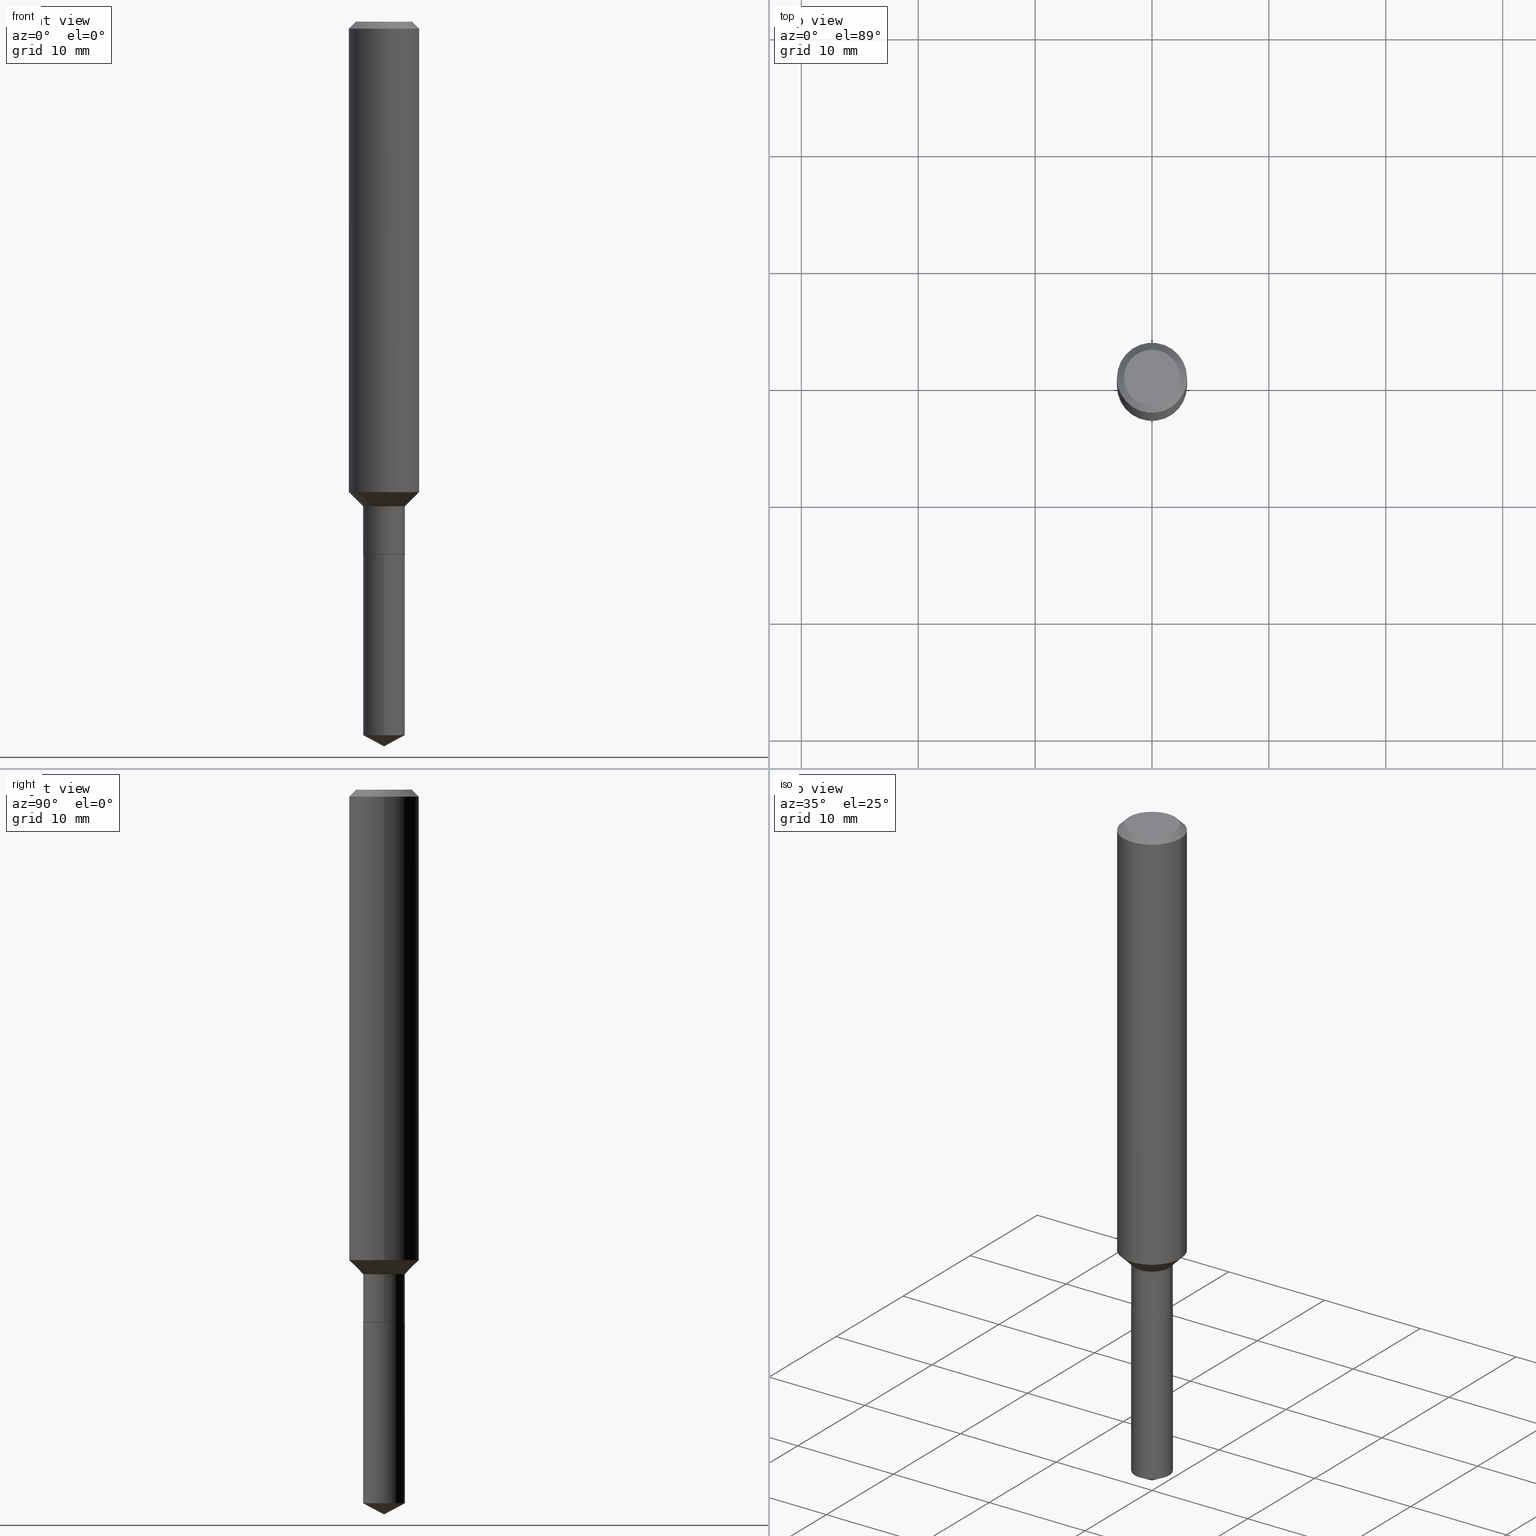
[diagram: canonical four-view strip — front | top / right | iso, engineering-drawing reading convention]
A machine part, canonical four-view strip (front | top / right | iso — engineering-drawing reading convention). The complete STEP part file that produces these views, byte-faithful:
ISO-10303-21;
HEADER;
FILE_DESCRIPTION (( 'STEP AP203' ),
    '1' );
FILE_NAME ('54702.STEP',
    '2024-04-24T15:22:13',
    ( '' ),
    ( '' ),
    'SwSTEP 2.0',
    'SolidWorks 2023',
    '' );
FILE_SCHEMA (( 'CONFIG_CONTROL_DESIGN' ));
ENDSEC;

DATA;
#1 = DIRECTION ( 'NONE',  ( -2.445468806185136877E-29, 3.491481338843145188E-15, 1.000000000000000000 ) ) ;
#2 = EDGE_CURVE ( 'NONE', #123, #404, #293, .T. ) ;
#3 = DIRECTION ( 'NONE',  ( -2.445468806185136597E-29, 3.491481338843145583E-15, 1.000000000000000000 ) ) ;
#4 = CIRCLE ( 'NONE', #474, 0.07029999999999998750 ) ;
#5 = ORGANIZATION ( 'UNSPECIFIED', 'UNSPECIFIED', '' ) ;
#6 = COORDINATED_UNIVERSAL_TIME_OFFSET ( 5, 0, .BEHIND. ) ;
#7 = DIRECTION ( 'NONE',  ( -2.445468806185136877E-29, 3.491481338843145188E-15, 1.000000000000000000 ) ) ;
#8 = ORIENTED_EDGE ( 'NONE', *, *, #89, .T. ) ;
#9 = CARTESIAN_POINT ( 'NONE',  ( 0.07029999999999998750, -6.190396413768896991E-15, -1.632400000000000295 ) ) ;
#10 = MANIFOLD_SOLID_BREP ( 'Body-Move/Copy2[1]', #482 ) ;
#11 = CC_DESIGN_PERSON_AND_ORGANIZATION_ASSIGNMENT ( #335, #411, ( #248 ) ) ;
#12 = CARTESIAN_POINT ( 'NONE',  ( 0.1181000000000001909, -6.357289221765599043E-15, -1.584600000000000453 ) ) ;
#13 = ORIENTED_EDGE ( 'NONE', *, *, #116, .F. ) ;
#14 = VECTOR ( 'NONE', #178, 39.37007874015748143 ) ;
#15 = VECTOR ( 'NONE', #249, 39.37007874015748143 ) ;
#16 = AXIS2_PLACEMENT_3D ( 'NONE', #329, #102, #171 ) ;
#17 = LINE ( 'NONE', #398, #91 ) ;
#18 = ORIENTED_EDGE ( 'NONE', *, *, #401, .T. ) ;
#19 = DIRECTION ( 'NONE',  ( -2.445468806185136597E-29, 3.491481338843145583E-15, 1.000000000000000000 ) ) ;
#20 = EDGE_CURVE ( 'NONE', #354, #123, #407, .T. ) ;
#21 = EDGE_LOOP ( 'NONE', ( #153, #409, #32, #8 ) ) ;
#22 = CARTESIAN_POINT ( 'NONE',  ( -0.1180999999999999966, -1.968384088444482555E-15, -0.02362000000000014088 ) ) ;
#23 = ORIENTED_EDGE ( 'NONE', *, *, #231, .F. ) ;
#24 = CARTESIAN_POINT ( 'NONE',  ( 0.07030000000000000138, -6.753223205590411040E-15, -1.793600000000000305 ) ) ;
#25 = EDGE_CURVE ( 'NONE', #384, #354, #4, .T. ) ;
#26 = CARTESIAN_POINT ( 'NONE',  ( 3.875089870280967892E-29, -5.532601329530849202E-15, -1.584600000000000453 ) ) ;
#27 = FACE_OUTER_BOUND ( 'NONE', #348, .T. ) ;
#28 =( LENGTH_UNIT ( ) NAMED_UNIT ( * ) SI_UNIT ( $, .METRE. ) );
#29 =( GEOMETRIC_REPRESENTATION_CONTEXT ( 3 ) GLOBAL_UNCERTAINTY_ASSIGNED_CONTEXT ( ( #325 ) ) GLOBAL_UNIT_ASSIGNED_CONTEXT ( ( #367, #448, #208 ) ) REPRESENTATION_CONTEXT ( 'NONE', 'WORKASPACE' ) );
#30 = ORIENTED_EDGE ( 'NONE', *, *, #455, .F. ) ;
#31 = CARTESIAN_POINT ( 'NONE',  ( 4.387415585176754180E-29, -6.264066670018488385E-15, -1.794100000000000028 ) ) ;
#32 = ORIENTED_EDGE ( 'NONE', *, *, #473, .T. ) ;
#33 = EDGE_CURVE ( 'NONE', #250, #201, #358, .T. ) ;
#34 = CARTESIAN_POINT ( 'NONE',  ( 6.011011443872282174E-29, -8.462401395969029001E-15, -2.440900000000000070 ) ) ;
#35 = ORIENTED_EDGE ( 'NONE', *, *, #66, .F. ) ;
#36 = ORIENTED_EDGE ( 'NONE', *, *, #33, .T. ) ;
#37 = AXIS2_PLACEMENT_3D ( 'NONE', #161, #58, #97 ) ;
#38 = APPROVAL_PERSON_ORGANIZATION ( #375, #320, #184 ) ;
#39 = FACE_OUTER_BOUND ( 'NONE', #226, .T. ) ;
#40 = CALENDAR_DATE ( 2024, 24, 4 ) ;
#41 = CARTESIAN_POINT ( 'NONE',  ( 6.011551123276464954E-29, -8.462401395969029001E-15, -2.440900000000000070 ) ) ;
#42 = APPROVAL_ROLE ( '' ) ;
#43 = FACE_OUTER_BOUND ( 'NONE', #470, .T. ) ;
#44 = VERTEX_POINT ( 'NONE', #356 ) ;
#45 = VECTOR ( 'NONE', #65, 39.37007874015748143 ) ;
#46 = APPROVAL_ROLE ( '' ) ;
#47 = PLANE ( 'NONE',  #59 ) ;
#48 = CC_DESIGN_DATE_AND_TIME_ASSIGNMENT ( #267, #302, ( #290 ) ) ;
#49 = EDGE_LOOP ( 'NONE', ( #365, #254, #69, #35 ) ) ;
#50 = LINE ( 'NONE', #9, #168 ) ;
#51 = ORIENTED_EDGE ( 'NONE', *, *, #81, .T. ) ;
#52 = DIRECTION ( 'NONE',  ( -2.445468806185136597E-29, 3.491481338843145583E-15, 1.000000000000000000 ) ) ;
#53 = ORIENTED_EDGE ( 'NONE', *, *, #259, .T. ) ;
#54 = ADVANCED_FACE ( 'NONE', ( #450 ), #339, .T. ) ;
#55 = FACE_OUTER_BOUND ( 'NONE', #49, .T. ) ;
#56 = DIRECTION ( 'NONE',  ( -2.445468806185136597E-29, 3.491481338843145583E-15, 1.000000000000000000 ) ) ;
#57 = DIRECTION ( 'NONE',  ( -2.462620936487476637E-29, 3.466918512011564751E-15, 1.000000000000000000 ) ) ;
#58 = DIRECTION ( 'NONE',  ( -2.445468806185136597E-29, 3.491481338843145583E-15, 1.000000000000000000 ) ) ;
#59 = AXIS2_PLACEMENT_3D ( 'NONE', #77, #305, #344 ) ;
#60 = CARTESIAN_POINT ( 'NONE',  ( 0.1181000000000001077, -8.246878922347488542E-16, 5.758764772215005345E-30 ) ) ;
#61 = CIRCLE ( 'NONE', #457, 0.07029999999999998750 ) ;
#62 = ADVANCED_FACE ( 'NONE', ( #94 ), #242, .T. ) ;
#63 = DIRECTION ( 'NONE',  ( 1.000000000000000000, -6.982962677686266711E-15, 0.000000000000000000 ) ) ;
#64 = ORIENTED_EDGE ( 'NONE', *, *, #387, .T. ) ;
#65 = DIRECTION ( 'NONE',  ( -2.462620936487476637E-29, 3.466918512011564751E-15, 1.000000000000000000 ) ) ;
#66 = EDGE_CURVE ( 'NONE', #107, #326, #50, .T. ) ;
#67 = AXIS2_PLACEMENT_3D ( 'NONE', #230, #385, #298 ) ;
#68 = CIRCLE ( 'NONE', #261, 0.09447999999999998066 ) ;
#69 = ORIENTED_EDGE ( 'NONE', *, *, #396, .F. ) ;
#70 = CARTESIAN_POINT ( 'NONE',  ( 0.07030000000000000138, -4.909022762413445529E-16, 3.427952273384543137E-30 ) ) ;
#71 = ORIENTED_EDGE ( 'NONE', *, *, #25, .F. ) ;
#72 = ORIENTED_EDGE ( 'NONE', *, *, #480, .T. ) ;
#73 = COORDINATED_UNIVERSAL_TIME_OFFSET ( 5, 0, .BEHIND. ) ;
#74 = DIRECTION ( 'NONE',  ( 1.000000000000000000, -6.982962677686266711E-15, 4.876176775795935793E-29 ) ) ;
#75 = CIRCLE ( 'NONE', #373, 0.1181000000000001909 ) ;
#76 = APPLICATION_PROTOCOL_DEFINITION ( 'international standard', 'config_control_design', 1994, #82 ) ;
#77 = CARTESIAN_POINT ( 'NONE',  ( 3.301506705810441154E-46, -4.713676585956823162E-32, -1.350050631380041873E-17 ) ) ;
#78 = CARTESIAN_POINT ( 'NONE',  ( 0.06980000000000000093, -6.751477464920990326E-15, -1.794100000000000028 ) ) ;
#79 = EDGE_LOOP ( 'NONE', ( #488, #490, #121, #311 ) ) ;
#80 = FACE_OUTER_BOUND ( 'NONE', #162, .T. ) ;
#81 = EDGE_CURVE ( 'NONE', #175, #250, #185, .T. ) ;
#82 = APPLICATION_CONTEXT ( 'configuration controlled 3d designs of mechanical parts and assemblies' ) ;
#83 = AXIS2_PLACEMENT_3D ( 'NONE', #318, #477, #328 ) ;
#84 = CIRCLE ( 'NONE', #16, 0.07029999999999998750 ) ;
#85 = DIRECTION ( 'NONE',  ( -2.438088387897960049E-29, 3.491481338843145188E-15, 1.000000000000000000 ) ) ;
#86 = ORIENTED_EDGE ( 'NONE', *, *, #231, .T. ) ;
#87 = CARTESIAN_POINT ( 'NONE',  ( 6.603013411620882309E-46, -9.427353171913646324E-32, -2.700101262760083747E-17 ) ) ;
#88 = ORIENTED_EDGE ( 'NONE', *, *, #240, .F. ) ;
#89 = EDGE_CURVE ( 'NONE', #274, #211, #413, .T. ) ;
#90 = FACE_OUTER_BOUND ( 'NONE', #244, .T. ) ;
#91 = VECTOR ( 'NONE', #160, 39.37007874015748143 ) ;
#92 = CC_DESIGN_APPROVAL ( #333, ( #290 ) ) ;
#93 = FACE_OUTER_BOUND ( 'NONE', #234, .T. ) ;
#94 = FACE_OUTER_BOUND ( 'NONE', #79, .T. ) ;
#95 = CARTESIAN_POINT ( 'NONE',  ( 0.000000000000000000, 0.000000000000000000, 0.000000000000000000 ) ) ;
#96 = ORIENTED_EDGE ( 'NONE', *, *, #163, .F. ) ;
#97 = DIRECTION ( 'NONE',  ( 1.000000000000000000, -6.982962677686271444E-15, 0.000000000000000000 ) ) ;
#98 = CC_DESIGN_PERSON_AND_ORGANIZATION_ASSIGNMENT ( #451, #142, ( #290 ) ) ;
#99 = MECHANICAL_CONTEXT ( 'NONE', #108, 'mechanical' ) ;
#100 = AXIS2_PLACEMENT_3D ( 'NONE', #362, #288, #479 ) ;
#101 = EDGE_CURVE ( 'NONE', #201, #212, #308, .T. ) ;
#102 = DIRECTION ( 'NONE',  ( -2.462620936487476637E-29, 3.466918512011564751E-15, 1.000000000000000000 ) ) ;
#103 = ORIENTED_EDGE ( 'NONE', *, *, #480, .F. ) ;
#104 = CARTESIAN_POINT ( 'NONE',  ( 0.1180999999999999966, -8.926936027602933910E-16, -0.02362000000000014088 ) ) ;
#105 = AXIS2_PLACEMENT_3D ( 'NONE', #334, #281, #434 ) ;
#106 = LOCAL_TIME ( 11, 22, 13.00000000000000000, #381 ) ;
#107 = VERTEX_POINT ( 'NONE', #189 ) ;
#108 = APPLICATION_CONTEXT ( 'configuration controlled 3d designs of mechanical parts and assemblies' ) ;
#109 = ORIENTED_EDGE ( 'NONE', *, *, #259, .F. ) ;
#110 = APPROVAL_STATUS ( 'not_yet_approved' ) ;
#111 = DIRECTION ( 'NONE',  ( 1.000000000000000000, -6.982962677686271444E-15, 0.000000000000000000 ) ) ;
#112 = CARTESIAN_POINT ( 'NONE',  ( 5.949466169921425223E-29, -8.550537731206106707E-15, -2.440900000000000070 ) ) ;
#113 = AXIS2_PLACEMENT_3D ( 'NONE', #95, #132, #475 ) ;
#114 = COORDINATED_UNIVERSAL_TIME_OFFSET ( 5, 0, .BEHIND. ) ;
#115 = CARTESIAN_POINT ( 'NONE',  ( 0.000000000000000000, 0.000000000000000000, 0.000000000000000000 ) ) ;
#116 = EDGE_CURVE ( 'NONE', #107, #212, #423, .T. ) ;
#117 = DIRECTION ( 'NONE',  ( 1.000000000000000000, -6.982962677686265922E-15, 4.876176775795935793E-29 ) ) ;
#118 = ORIENTED_EDGE ( 'NONE', *, *, #473, .F. ) ;
#119 = FACE_OUTER_BOUND ( 'NONE', #392, .T. ) ;
#120 = AXIS2_PLACEMENT_3D ( 'NONE', #376, #85, #117 ) ;
#121 = ORIENTED_EDGE ( 'NONE', *, *, #416, .F. ) ;
#122 = DIRECTION ( 'NONE',  ( 1.000000000000000000, -6.982962677686265133E-15, 0.000000000000000000 ) ) ;
#123 = VERTEX_POINT ( 'NONE', #268 ) ;
#124 = CARTESIAN_POINT ( 'NONE',  ( 4.387415585176754180E-29, -6.264066670018488385E-15, -1.794100000000000028 ) ) ;
#125 = ORIENTED_EDGE ( 'NONE', *, *, #364, .T. ) ;
#126 = FACE_OUTER_BOUND ( 'NONE', #483, .T. ) ;
#127 = ORIENTED_EDGE ( 'NONE', *, *, #200, .T. ) ;
#128 = LOCAL_TIME ( 11, 22, 13.00000000000000000, #6 ) ;
#129 = CARTESIAN_POINT ( 'NONE',  ( -9.097334136977545138E-28, 1.279863852400173612E-13, 36.92917874015748225 ) ) ;
#130 = ORIENTED_EDGE ( 'NONE', *, *, #167, .T. ) ;
#131 = EDGE_CURVE ( 'NONE', #175, #272, #431, .T. ) ;
#132 = DIRECTION ( 'NONE',  ( -2.445468806185136597E-29, 3.491481338843145583E-15, 1.000000000000000000 ) ) ;
#133 = CONICAL_SURFACE ( 'NONE', #433, 74.04434902938366747, 1.082104136236487157 ) ;
#134 = ADVANCED_FACE ( 'NONE', ( #43 ), #463, .T. ) ;
#135 = CARTESIAN_POINT ( 'NONE',  ( 0.000000000000000000, 0.000000000000000000, 0.000000000000000000 ) ) ;
#136 = ORIENTED_EDGE ( 'NONE', *, *, #396, .T. ) ;
#137 = DIRECTION ( 'NONE',  ( -2.462620936487476637E-29, 3.466918512011564751E-15, 1.000000000000000000 ) ) ;
#138 = CARTESIAN_POINT ( 'NONE',  ( 5.888188072765674543E-29, -8.376879016591395070E-15, -2.403520826954198331 ) ) ;
#139 = DIRECTION ( 'NONE',  ( -0.7071067811865460184, 2.468850131082241283E-15, -0.7071067811865490160 ) ) ;
#140 = CC_DESIGN_APPROVAL ( #206, ( #187 ) ) ;
#141 = CARTESIAN_POINT ( 'NONE',  ( 4.386192850773661378E-29, -6.262320929349066882E-15, -1.793600000000000305 ) ) ;
#142 = PERSON_AND_ORGANIZATION_ROLE ( 'creator' ) ;
#143 = ADVANCED_FACE ( 'NONE', ( #461 ), #418, .T. ) ;
#144 = DIRECTION ( 'NONE',  ( -6.165590087286836818E-15, -0.8829475928589266553, 0.4694715627858913609 ) ) ;
#145 = CARTESIAN_POINT ( 'NONE',  ( 0.000000000000000000, 0.000000000000000000, 0.000000000000000000 ) ) ;
#146 = DATE_AND_TIME ( #224, #323 ) ;
#147 = DIRECTION ( 'NONE',  ( -2.462620936487476637E-29, 3.466918512011564751E-15, 1.000000000000000000 ) ) ;
#148 = AXIS2_PLACEMENT_3D ( 'NONE', #357, #156, #438 ) ;
#149 = AXIS2_PLACEMENT_3D ( 'NONE', #199, #275, #243 ) ;
#150 = ADVANCED_FACE ( 'NONE', ( #119 ), #380, .T. ) ;
#151 = APPROVAL_STATUS ( 'not_yet_approved' ) ;
#152 = CARTESIAN_POINT ( 'NONE',  ( 0.06980000000000000093, -6.751477464920990326E-15, -1.794100000000000028 ) ) ;
#153 = ORIENTED_EDGE ( 'NONE', *, *, #401, .F. ) ;
#154 = DIRECTION ( 'NONE',  ( 0.7071067811865493491, -2.468850131082275993E-15, 0.7071067811865457964 ) ) ;
#155 = VERTEX_POINT ( 'NONE', #262 ) ;
#156 = DIRECTION ( 'NONE',  ( -2.445468806185136597E-29, 3.491481338843145583E-15, 1.000000000000000000 ) ) ;
#157 = ORIENTED_EDGE ( 'NONE', *, *, #467, .F. ) ;
#158 = CARTESIAN_POINT ( 'NONE',  ( 3.991983279216617405E-29, -5.699494137527552043E-15, -1.632400000000000295 ) ) ;
#159 = ORIENTED_EDGE ( 'NONE', *, *, #426, .T. ) ;
#160 = DIRECTION ( 'NONE',  ( -0.7071067811866259545, 7.493145998870638150E-15, 0.7071067811864690800 ) ) ;
#161 = CARTESIAN_POINT ( 'NONE',  ( 4.387415585176754180E-29, -6.264066670018488385E-15, -1.794100000000000028 ) ) ;
#162 = EDGE_LOOP ( 'NONE', ( #109, #86, #51, #289 ) ) ;
#163 = EDGE_CURVE ( 'NONE', #445, #384, #220, .T. ) ;
#164 = AXIS2_PLACEMENT_3D ( 'NONE', #378, #301, #180 ) ;
#165 = FACE_OUTER_BOUND ( 'NONE', #472, .T. ) ;
#166 = CARTESIAN_POINT ( 'NONE',  ( -0.09447999999999998066, 7.009847083995354710E-16, -2.700101262760559836E-17 ) ) ;
#167 = EDGE_CURVE ( 'NONE', #44, #274, #425, .T. ) ;
#168 = VECTOR ( 'NONE', #154, 39.37007874015748143 ) ;
#169 = CIRCLE ( 'NONE', #204, 0.1180999999999999966 ) ;
#170 = ORIENTED_EDGE ( 'NONE', *, *, #131, .T. ) ;
#171 = DIRECTION ( 'NONE',  ( -6.982962677686265133E-15, -1.000000000000000000, 3.885985766236506175E-15 ) ) ;
#172 = ORIENTED_EDGE ( 'NONE', *, *, #33, .F. ) ;
#173 = DIMENSIONAL_EXPONENTS ( 1.000000000000000000, 0.000000000000000000, 0.000000000000000000, 0.000000000000000000, 0.000000000000000000, 0.000000000000000000, 0.000000000000000000 ) ;
#174 = CARTESIAN_POINT ( 'NONE',  ( -4.909022762413006725E-16, -0.07030000000000626026, -1.794099999999999806 ) ) ;
#175 = VERTEX_POINT ( 'NONE', #152 ) ;
#176 = ADVANCED_FACE ( 'NONE', ( #39 ), #47, .F. ) ;
#177 = CONICAL_SURFACE ( 'NONE', #366, 0.1180999999999999966, 0.7853981633974461696 ) ;
#178 = DIRECTION ( 'NONE',  ( -2.462620936487476637E-29, 3.466918512011564751E-15, 1.000000000000000000 ) ) ;
#179 = DATE_AND_TIME ( #40, #128 ) ;
#180 = DIRECTION ( 'NONE',  ( 1.000000000000000000, -6.982962677686266711E-15, 0.000000000000000000 ) ) ;
#181 = PERSON_AND_ORGANIZATION_ROLE ( 'creator' ) ;
#182 = CARTESIAN_POINT ( 'NONE',  ( 0.1180999999999999966, -9.071566814582237199E-16, -0.02362000000000014088 ) ) ;
#183 = ADVANCED_FACE ( 'NONE', ( #336 ), #223, .F. ) ;
#184 = APPROVAL_ROLE ( '' ) ;
#185 = LINE ( 'NONE', #78, #399 ) ;
#186 = VECTOR ( 'NONE', #190, 39.37007874015748143 ) ;
#187 = SECURITY_CLASSIFICATION ( '', '', #417 ) ;
#188 = DATE_AND_TIME ( #420, #476 ) ;
#189 = CARTESIAN_POINT ( 'NONE',  ( 0.07029999999999998750, -6.190396413768896991E-15, -1.632400000000000295 ) ) ;
#190 = DIRECTION ( 'NONE',  ( 6.273719981627766865E-15, 0.8829475928589298750, 0.4694715627858853102 ) ) ;
#191 = ORIENTED_EDGE ( 'NONE', *, *, #20, .F. ) ;
#192 = FACE_OUTER_BOUND ( 'NONE', #345, .T. ) ;
#193 = DESIGN_CONTEXT ( 'detailed design', #82, 'design' ) ;
#194 = AXIS2_PLACEMENT_3D ( 'NONE', #115, #3, #74 ) ;
#195 = AXIS2_PLACEMENT_3D ( 'NONE', #429, #236, #388 ) ;
#196 = ORIENTED_EDGE ( 'NONE', *, *, #416, .T. ) ;
#197 = DIRECTION ( 'NONE',  ( -6.982962677686266711E-15, -1.000000000000000000, 3.885985766236506175E-15 ) ) ;
#198 = ORIENTED_EDGE ( 'NONE', *, *, #327, .T. ) ;
#199 = CARTESIAN_POINT ( 'NONE',  ( 4.387415585176754180E-29, -6.264066670018488385E-15, -1.794100000000000028 ) ) ;
#200 = EDGE_CURVE ( 'NONE', #445, #354, #452, .T. ) ;
#201 = VERTEX_POINT ( 'NONE', #347 ) ;
#202 = DIRECTION ( 'NONE',  ( -0.7071067811865493491, 7.493145998870360471E-15, 0.7071067811865457964 ) ) ;
#203 = AXIS2_PLACEMENT_3D ( 'NONE', #145, #454, #415 ) ;
#204 = AXIS2_PLACEMENT_3D ( 'NONE', #233, #52, #487 ) ;
#205 = DIRECTION ( 'NONE',  ( -6.982962677686265922E-15, -1.000000000000000000, 3.541896320645554558E-15 ) ) ;
#206 = APPROVAL ( #151, 'UNSPECIFIED' ) ;
#207 = PERSON_AND_ORGANIZATION_ROLE ( 'design_owner' ) ;
#208 =( NAMED_UNIT ( * ) SI_UNIT ( $, .STERADIAN. ) SOLID_ANGLE_UNIT ( ) );
#209 = DIRECTION ( 'NONE',  ( -6.982962677686265133E-15, -1.000000000000000000, 3.885985766236506175E-15 ) ) ;
#210 = CONICAL_SURFACE ( 'NONE', #414, 0.07029999999999998750, 0.7853981633974508325 ) ;
#211 = VERTEX_POINT ( 'NONE', #182 ) ;
#212 = VERTEX_POINT ( 'NONE', #304 ) ;
#213 = ADVANCED_FACE ( 'NONE', ( #80 ), #465, .T. ) ;
#214 = PERSON_AND_ORGANIZATION ( #361, #5 ) ;
#215 = DIRECTION ( 'NONE',  ( -2.445468806185136597E-29, 3.491481338843145583E-15, 1.000000000000000000 ) ) ;
#216 = AXIS2_PLACEMENT_3D ( 'NONE', #124, #245, #197 ) ;
#217 = PERSON_AND_ORGANIZATION ( #361, #5 ) ;
#218 = CIRCLE ( 'NONE', #351, 0.1181000000000001909 ) ;
#219 = CIRCLE ( 'NONE', #100, 0.09447999999999998066 ) ;
#220 = LINE ( 'NONE', #112, #270 ) ;
#221 = ADVANCED_FACE ( 'NONE', ( #258 ), #395, .T. ) ;
#222 = APPROVAL_DATE_TIME ( #146, #333 ) ;
#223 = PLANE ( 'NONE',  #120 ) ;
#224 = CALENDAR_DATE ( 2024, 24, 4 ) ;
#225 = DIRECTION ( 'NONE',  ( 0.7071067811866259545, -2.468850131083078659E-15, 0.7071067811864690800 ) ) ;
#226 = EDGE_LOOP ( 'NONE', ( #125, #159 ) ) ;
#227 = APPROVAL_DATE_TIME ( #343, #206 ) ;
#228 = CARTESIAN_POINT ( 'NONE',  ( 4.387415585176754180E-29, -6.264066670018488385E-15, -1.794100000000000028 ) ) ;
#229 = ORIENTED_EDGE ( 'NONE', *, *, #360, .T. ) ;
#230 = CARTESIAN_POINT ( 'NONE',  ( 3.991983279216617405E-29, -5.699494137527552043E-15, -1.632400000000000295 ) ) ;
#231 = EDGE_CURVE ( 'NONE', #272, #175, #247, .T. ) ;
#232 = ORIENTED_EDGE ( 'NONE', *, *, #200, .F. ) ;
#233 = CARTESIAN_POINT ( 'NONE',  ( 5.776197320209327532E-31, -8.246878922347559293E-17, -0.02362000000000014088 ) ) ;
#234 = EDGE_LOOP ( 'NONE', ( #196, #276 ) ) ;
#235 = ADVANCED_BREP_SHAPE_REPRESENTATION ( '54702', ( #10, #346, #303 ), #29 ) ;
#236 = DIRECTION ( 'NONE',  ( -2.445468806185136597E-29, 3.491481338843145583E-15, 1.000000000000000000 ) ) ;
#237 = VECTOR ( 'NONE', #202, 39.37007874015748143 ) ;
#238 = VECTOR ( 'NONE', #393, 39.37007874015748143 ) ;
#239 = ORIENTED_EDGE ( 'NONE', *, *, #101, .T. ) ;
#240 = EDGE_CURVE ( 'NONE', #212, #44, #350, .T. ) ;
#241 = DIRECTION ( 'NONE',  ( -2.445468806185136597E-29, 3.491481338843145583E-15, 1.000000000000000000 ) ) ;
#242 = CYLINDRICAL_SURFACE ( 'NONE', #285, 0.07029999999999998750 ) ;
#243 = DIRECTION ( 'NONE',  ( 6.982962677686265922E-15, 1.000000000000000000, -3.466918512011564751E-15 ) ) ;
#244 = EDGE_LOOP ( 'NONE', ( #36, #239, #13, #103 ) ) ;
#245 = DIRECTION ( 'NONE',  ( -2.462620936487476637E-29, 3.466918512011564751E-15, 1.000000000000000000 ) ) ;
#246 = PRODUCT_RELATED_PRODUCT_CATEGORY ( 'detail', '', ( #309 ) ) ;
#247 = CIRCLE ( 'NONE', #37, 0.06980000000000000093 ) ;
#248 = PRODUCT_DEFINITION_FORMATION_WITH_SPECIFIED_SOURCE ( 'ANY', '', #309, .NOT_KNOWN. ) ;
#249 = DIRECTION ( 'NONE',  ( -2.445468806185136877E-29, 3.491481338843145188E-15, 1.000000000000000000 ) ) ;
#250 = VERTEX_POINT ( 'NONE', #24 ) ;
#251 = AXIS2_PLACEMENT_3D ( 'NONE', #319, #241, #284 ) ;
#252 = LENGTH_MEASURE_WITH_UNIT ( LENGTH_MEASURE( 0.02539999999999999897 ), #28 );
#253 = ADVANCED_FACE ( 'NONE', ( #90 ), #428, .T. ) ;
#254 = ORIENTED_EDGE ( 'NONE', *, *, #240, .T. ) ;
#255 = DIRECTION ( 'NONE',  ( -1.000000000000000000, 6.982962677686266711E-15, 0.000000000000000000 ) ) ;
#256 = ORIENTED_EDGE ( 'NONE', *, *, #486, .T. ) ;
#257 = COORDINATED_UNIVERSAL_TIME_OFFSET ( 5, 0, .BEHIND. ) ;
#258 = FACE_OUTER_BOUND ( 'NONE', #468, .T. ) ;
#259 = EDGE_CURVE ( 'NONE', #272, #201, #17, .T. ) ;
#260 = AXIS2_PLACEMENT_3D ( 'NONE', #228, #383, #111 ) ;
#261 = AXIS2_PLACEMENT_3D ( 'NONE', #87, #355, #436 ) ;
#262 = CARTESIAN_POINT ( 'NONE',  ( 0.09447999999999998066, -7.704367267948738690E-16, -2.700101262759583929E-17 ) ) ;
#263 = APPROVAL_DATE_TIME ( #179, #320 ) ;
#264 = CARTESIAN_POINT ( 'NONE',  ( 4.387415585176754180E-29, -6.264066670018488385E-15, -1.794100000000000028 ) ) ;
#265 = DIRECTION ( 'NONE',  ( -6.982962677686266711E-15, -1.000000000000000000, 3.885985766236506175E-15 ) ) ;
#266 = ORIENTED_EDGE ( 'NONE', *, *, #2, .F. ) ;
#267 = DATE_AND_TIME ( #297, #340 ) ;
#268 = CARTESIAN_POINT ( 'NONE',  ( 4.995115432394092106E-16, 0.07029999999999372862, -1.794100000000000472 ) ) ;
#269 = ADVANCED_FACE ( 'NONE', ( #165 ), #210, .T. ) ;
#270 = VECTOR ( 'NONE', #144, 39.37007874015748854 ) ;
#271 = VECTOR ( 'NONE', #484, 39.37007874015748143 ) ;
#272 = VERTEX_POINT ( 'NONE', #312 ) ;
#273 = CARTESIAN_POINT ( 'NONE',  ( -4.909022762412853883E-16, -0.07030000000000832805, -2.403520826954198331 ) ) ;
#274 = VERTEX_POINT ( 'NONE', #22 ) ;
#275 = DIRECTION ( 'NONE',  ( 2.462620936487476356E-29, -3.466918512011564751E-15, -1.000000000000000000 ) ) ;
#276 = ORIENTED_EDGE ( 'NONE', *, *, #2, .T. ) ;
#277 = ADVANCED_FACE ( 'NONE', ( #126 ), #469, .T. ) ;
#278 = PRODUCT_DEFINITION_SHAPE ( 'NONE', 'NONE',  #290 ) ;
#279 = FACE_OUTER_BOUND ( 'NONE', #389, .T. ) ;
#280 = CLOSED_SHELL ( 'NONE', ( #313, #435, #277, #342, #253, #134, #269, #143, #54, #176, #183, #213 ) ) ;
#281 = DIRECTION ( 'NONE',  ( 2.445468806185136597E-29, -3.491481338843145583E-15, -1.000000000000000000 ) ) ;
#282 = LINE ( 'NONE', #60, #238 ) ;
#283 = ORIENTED_EDGE ( 'NONE', *, *, #299, .T. ) ;
#284 = DIRECTION ( 'NONE',  ( 1.000000000000000000, -6.982962677686266711E-15, 0.000000000000000000 ) ) ;
#285 = AXIS2_PLACEMENT_3D ( 'NONE', #394, #57, #265 ) ;
#286 = APPROVAL_PERSON_ORGANIZATION ( #214, #333, #46 ) ;
#287 = DIRECTION ( 'NONE',  ( -2.445468806185136597E-29, 3.491481338843145583E-15, 1.000000000000000000 ) ) ;
#288 = DIRECTION ( 'NONE',  ( -2.445468806185136597E-29, 3.491481338843145583E-15, 1.000000000000000000 ) ) ;
#289 = ORIENTED_EDGE ( 'NONE', *, *, #360, .F. ) ;
#290 = PRODUCT_DEFINITION ( 'UNKNOWN', '', #248, #193 ) ;
#291 = LINE ( 'NONE', #403, #332 ) ;
#292 = ORIENTED_EDGE ( 'NONE', *, *, #101, .F. ) ;
#293 = CIRCLE ( 'NONE', #83, 0.07030000000000000138 ) ;
#294 = CIRCLE ( 'NONE', #442, 0.07030000000000000138 ) ;
#295 = LINE ( 'NONE', #481, #45 ) ;
#296 = DIRECTION ( 'NONE',  ( 1.000000000000000000, -6.982962677686265133E-15, 0.000000000000000000 ) ) ;
#297 = CALENDAR_DATE ( 2024, 24, 4 ) ;
#298 = DIRECTION ( 'NONE',  ( 1.000000000000000000, -6.982962677686266711E-15, 0.000000000000000000 ) ) ;
#299 = EDGE_CURVE ( 'NONE', #44, #326, #218, .T. ) ;
#300 = DATE_TIME_ROLE ( 'classification_date' ) ;
#301 = DIRECTION ( 'NONE',  ( -2.445468806185136597E-29, 3.491481338843145583E-15, 1.000000000000000000 ) ) ;
#302 = DATE_TIME_ROLE ( 'creation_date' ) ;
#303 = AXIS2_PLACEMENT_3D ( 'NONE', #135, #402, #446 ) ;
#304 = CARTESIAN_POINT ( 'NONE',  ( -0.07029999999999998750, -5.481395990198959614E-15, -1.632400000000000295 ) ) ;
#305 = DIRECTION ( 'NONE',  ( 2.438088387897960049E-29, -3.491481338843145188E-15, -1.000000000000000000 ) ) ;
#306 = ORIENTED_EDGE ( 'NONE', *, *, #455, .T. ) ;
#307 = ADVANCED_FACE ( 'NONE', ( #93 ), #471, .F. ) ;
#308 = LINE ( 'NONE', #421, #331 ) ;
#309 = PRODUCT ( '54702', '54702', '', ( #99 ) ) ;
#310 = CARTESIAN_POINT ( 'NONE',  ( 4.386192850773661378E-29, -6.262320929349066882E-15, -1.793600000000000305 ) ) ;
#311 = ORIENTED_EDGE ( 'NONE', *, *, #486, .F. ) ;
#312 = CARTESIAN_POINT ( 'NONE',  ( -0.06980000000000000093, -5.765458613283827445E-15, -1.794100000000000028 ) ) ;
#313 = ADVANCED_FACE ( 'NONE', ( #192 ), #400, .T. ) ;
#314 = DIRECTION ( 'NONE',  ( -2.445468806185136597E-29, 3.491481338843145583E-15, 1.000000000000000000 ) ) ;
#315 = DIRECTION ( 'NONE',  ( 1.000000000000000000, -6.982962677686266711E-15, 0.000000000000000000 ) ) ;
#316 = AXIS2_PLACEMENT_3D ( 'NONE', #141, #215, #296 ) ;
#317 = APPROVAL_PERSON_ORGANIZATION ( #377, #206, #42 ) ;
#318 = CARTESIAN_POINT ( 'NONE',  ( 4.387415585176754180E-29, -6.264066670018488385E-15, -1.794100000000000028 ) ) ;
#319 = CARTESIAN_POINT ( 'NONE',  ( 3.991983279216617405E-29, -5.699494137527552043E-15, -1.632400000000000295 ) ) ;
#320 = APPROVAL ( #460, 'UNSPECIFIED' ) ;
#321 = DIRECTION ( 'NONE',  ( -6.982962677686265133E-15, -1.000000000000000000, 3.885985766236505386E-15 ) ) ;
#322 = LINE ( 'NONE', #70, #15 ) ;
#323 = LOCAL_TIME ( 11, 22, 13.00000000000000000, #114 ) ;
#324 = PERSON_AND_ORGANIZATION ( #361, #5 ) ;
#325 = UNCERTAINTY_MEASURE_WITH_UNIT (LENGTH_MEASURE( 1.000000000000000082E-05 ), #367, 'distance_accuracy_value', 'NONE');
#326 = VERTEX_POINT ( 'NONE', #12 ) ;
#327 = EDGE_CURVE ( 'NONE', #326, #211, #282, .T. ) ;
#328 = DIRECTION ( 'NONE',  ( -6.982962677686265133E-15, -1.000000000000000000, 3.885985766236505386E-15 ) ) ;
#329 = CARTESIAN_POINT ( 'NONE',  ( 5.888188072765674543E-29, -8.376879016591395070E-15, -2.403520826954198331 ) ) ;
#330 = ORIENTED_EDGE ( 'NONE', *, *, #387, .F. ) ;
#331 = VECTOR ( 'NONE', #1, 39.37007874015748143 ) ;
#332 = VECTOR ( 'NONE', #139, 39.37007874015748143 ) ;
#333 = APPROVAL ( #110, 'UNSPECIFIED' ) ;
#334 = CARTESIAN_POINT ( 'NONE',  ( 5.776197320209327532E-31, -8.246878922347559293E-17, -0.02362000000000014088 ) ) ;
#335 = PERSON_AND_ORGANIZATION ( #361, #5 ) ;
#336 = FACE_OUTER_BOUND ( 'NONE', #397, .T. ) ;
#337 = SHAPE_DEFINITION_REPRESENTATION ( #278, #235 ) ;
#338 = DIRECTION ( 'NONE',  ( 1.000000000000000000, -6.982962677686271444E-15, 0.000000000000000000 ) ) ;
#339 = CONICAL_SURFACE ( 'NONE', #105, 0.1180999999999999966, 0.7853981633974461696 ) ;
#340 = LOCAL_TIME ( 11, 22, 13.00000000000000000, #257 ) ;
#341 = DIRECTION ( 'NONE',  ( -6.982962677686265922E-15, -1.000000000000000000, 3.541896320645554558E-15 ) ) ;
#342 = ADVANCED_FACE ( 'NONE', ( #55 ), #382, .T. ) ;
#343 = DATE_AND_TIME ( #458, #106 ) ;
#344 = DIRECTION ( 'NONE',  ( -1.000000000000000000, 6.982962677686265922E-15, -4.876176775795935793E-29 ) ) ;
#345 = EDGE_LOOP ( 'NONE', ( #170, #53, #172, #386 ) ) ;
#346 = MANIFOLD_SOLID_BREP ( 'Body-Move/Copy2[2]', #280 ) ;
#347 = CARTESIAN_POINT ( 'NONE',  ( -0.07030000000000001525, -5.481395990198959614E-15, -1.793600000000000305 ) ) ;
#348 = EDGE_LOOP ( 'NONE', ( #430, #18, #64, #118 ) ) ;
#349 = ADVANCED_FACE ( 'NONE', ( #279 ), #133, .T. ) ;
#350 = LINE ( 'NONE', #353, #237 ) ;
#351 = AXIS2_PLACEMENT_3D ( 'NONE', #390, #314, #466 ) ;
#352 = ORIENTED_EDGE ( 'NONE', *, *, #299, .F. ) ;
#353 = CARTESIAN_POINT ( 'NONE',  ( -0.07029999999999998750, -5.199982594288202194E-15, -1.632400000000000295 ) ) ;
#354 = VERTEX_POINT ( 'NONE', #432 ) ;
#355 = DIRECTION ( 'NONE',  ( -2.445468806185136597E-29, 3.491481338843145583E-15, 1.000000000000000000 ) ) ;
#356 = CARTESIAN_POINT ( 'NONE',  ( -0.1181000000000001909, -4.693450358598171005E-15, -1.584600000000000453 ) ) ;
#357 = CARTESIAN_POINT ( 'NONE',  ( 0.000000000000000000, 0.000000000000000000, 0.000000000000000000 ) ) ;
#358 = CIRCLE ( 'NONE', #316, 0.07030000000000000138 ) ;
#359 = CIRCLE ( 'NONE', #391, 0.07030000000000000138 ) ;
#360 = EDGE_CURVE ( 'NONE', #201, #250, #359, .T. ) ;
#361 = PERSON ( 'UNSPECIFIED', 'UNSPECIFIED', 'UNSPECIFIED', ('UNSPECIFIED'), ('UNSPECIFIED'), ('UNSPECIFIED') ) ;
#362 = CARTESIAN_POINT ( 'NONE',  ( 6.603013411620882309E-46, -9.427353171913646324E-32, -2.700101262760083747E-17 ) ) ;
#363 = LINE ( 'NONE', #104, #271 ) ;
#364 = EDGE_CURVE ( 'NONE', #462, #155, #68, .T. ) ;
#365 = ORIENTED_EDGE ( 'NONE', *, *, #116, .T. ) ;
#366 = AXIS2_PLACEMENT_3D ( 'NONE', #444, #369, #255 ) ;
#367 =( CONVERSION_BASED_UNIT ( 'INCH', #252 ) LENGTH_UNIT ( ) NAMED_UNIT ( #173 ) );
#368 = ORIENTED_EDGE ( 'NONE', *, *, #467, .T. ) ;
#369 = DIRECTION ( 'NONE',  ( 2.445468806185136597E-29, -3.491481338843145583E-15, -1.000000000000000000 ) ) ;
#370 = DIRECTION ( 'NONE',  ( -2.462620936487476637E-29, 3.466918512011564751E-15, 1.000000000000000000 ) ) ;
#371 = ORIENTED_EDGE ( 'NONE', *, *, #167, .F. ) ;
#372 = CC_DESIGN_DATE_AND_TIME_ASSIGNMENT ( #188, #300, ( #187 ) ) ;
#373 = AXIS2_PLACEMENT_3D ( 'NONE', #26, #408, #406 ) ;
#374 = CARTESIAN_POINT ( 'NONE',  ( -0.1181000000000001077, 8.391509709326790846E-16, -5.809262341591049389E-30 ) ) ;
#375 = PERSON_AND_ORGANIZATION ( #361, #5 ) ;
#376 = CARTESIAN_POINT ( 'NONE',  ( 4.387415585176754180E-29, -6.264066670018488385E-15, -1.794100000000000028 ) ) ;
#377 = PERSON_AND_ORGANIZATION ( #361, #5 ) ;
#378 = CARTESIAN_POINT ( 'NONE',  ( 5.776197320209327532E-31, -8.246878922347559293E-17, -0.02362000000000014088 ) ) ;
#379 = CC_DESIGN_PERSON_AND_ORGANIZATION_ASSIGNMENT ( #324, #207, ( #309 ) ) ;
#380 = CONICAL_SURFACE ( 'NONE', #441, 74.04434902938366747, 1.082104136236487157 ) ;
#381 = COORDINATED_UNIVERSAL_TIME_OFFSET ( 5, 0, .BEHIND. ) ;
#382 = CONICAL_SURFACE ( 'NONE', #251, 0.07029999999999998750, 0.7853981633974508325 ) ;
#383 = DIRECTION ( 'NONE',  ( -2.445468806185136597E-29, 3.491481338843145583E-15, 1.000000000000000000 ) ) ;
#384 = VERTEX_POINT ( 'NONE', #273 ) ;
#385 = DIRECTION ( 'NONE',  ( -2.445468806185136597E-29, 3.491481338843145583E-15, 1.000000000000000000 ) ) ;
#386 = ORIENTED_EDGE ( 'NONE', *, *, #81, .F. ) ;
#387 = EDGE_CURVE ( 'NONE', #211, #274, #169, .T. ) ;
#388 = DIRECTION ( 'NONE',  ( 1.000000000000000000, -6.982962677686271444E-15, 0.000000000000000000 ) ) ;
#389 = EDGE_LOOP ( 'NONE', ( #232, #419, #157 ) ) ;
#390 = CARTESIAN_POINT ( 'NONE',  ( 3.875089870280967892E-29, -5.532601329530849202E-15, -1.584600000000000453 ) ) ;
#391 = AXIS2_PLACEMENT_3D ( 'NONE', #310, #56, #122 ) ;
#392 = EDGE_LOOP ( 'NONE', ( #96, #127, #71 ) ) ;
#393 = DIRECTION ( 'NONE',  ( -2.445468806185136877E-29, 3.491481338843145188E-15, 1.000000000000000000 ) ) ;
#394 = CARTESIAN_POINT ( 'NONE',  ( 4.387415585176754180E-29, -6.264066670018488385E-15, -1.794100000000000028 ) ) ;
#395 = CYLINDRICAL_SURFACE ( 'NONE', #216, 0.07029999999999998750 ) ;
#396 = EDGE_CURVE ( 'NONE', #326, #44, #75, .T. ) ;
#397 = EDGE_LOOP ( 'NONE', ( #427, #23 ) ) ;
#398 = CARTESIAN_POINT ( 'NONE',  ( -0.06980000000000000093, -5.768107840457937857E-15, -1.794100000000000028 ) ) ;
#399 = VECTOR ( 'NONE', #225, 39.37007874015748143 ) ;
#400 = CONICAL_SURFACE ( 'NONE', #195, 0.06980000000000000093, 0.7853981633975591903 ) ;
#401 = EDGE_CURVE ( 'NONE', #155, #211, #363, .T. ) ;
#402 = DIRECTION ( 'NONE',  ( 0.000000000000000000, 0.000000000000000000, 1.000000000000000000 ) ) ;
#403 = CARTESIAN_POINT ( 'NONE',  ( -0.1180999999999999966, 7.422191030112725094E-16, -0.02362000000000014088 ) ) ;
#404 = VERTEX_POINT ( 'NONE', #174 ) ;
#405 = CC_DESIGN_APPROVAL ( #320, ( #248 ) ) ;
#406 = DIRECTION ( 'NONE',  ( 1.000000000000000000, -6.982962677686269077E-15, 0.000000000000000000 ) ) ;
#407 = LINE ( 'NONE', #485, #14 ) ;
#408 = DIRECTION ( 'NONE',  ( -2.445468806185136597E-29, 3.491481338843145583E-15, 1.000000000000000000 ) ) ;
#409 = ORIENTED_EDGE ( 'NONE', *, *, #364, .F. ) ;
#410 = CC_DESIGN_PERSON_AND_ORGANIZATION_ASSIGNMENT ( #489, #453, ( #187 ) ) ;
#411 = PERSON_AND_ORGANIZATION_ROLE ( 'design_supplier' ) ;
#412 = CARTESIAN_POINT ( 'NONE',  ( -9.097334136977545138E-28, 1.279863852400173612E-13, 36.92917874015748225 ) ) ;
#413 = CIRCLE ( 'NONE', #164, 0.1180999999999999966 ) ;
#414 = AXIS2_PLACEMENT_3D ( 'NONE', #158, #19, #315 ) ;
#415 = DIRECTION ( 'NONE',  ( 1.000000000000000000, -6.982962677686266711E-15, 4.876176775795936353E-29 ) ) ;
#416 = EDGE_CURVE ( 'NONE', #404, #123, #294, .T. ) ;
#417 = SECURITY_CLASSIFICATION_LEVEL ( 'unclassified' ) ;
#418 = CYLINDRICAL_SURFACE ( 'NONE', #194, 0.1181000000000001077 ) ;
#419 = ORIENTED_EDGE ( 'NONE', *, *, #163, .T. ) ;
#420 = CALENDAR_DATE ( 2024, 24, 4 ) ;
#421 = CARTESIAN_POINT ( 'NONE',  ( -0.07030000000000000138, 4.995115432393504404E-16, -3.458011368449198869E-30 ) ) ;
#422 = ORIENTED_EDGE ( 'NONE', *, *, #327, .F. ) ;
#423 = CIRCLE ( 'NONE', #67, 0.07029999999999998750 ) ;
#424 = CC_DESIGN_SECURITY_CLASSIFICATION ( #187, ( #248 ) ) ;
#425 = LINE ( 'NONE', #374, #456 ) ;
#426 = EDGE_CURVE ( 'NONE', #155, #462, #219, .T. ) ;
#427 = ORIENTED_EDGE ( 'NONE', *, *, #131, .F. ) ;
#428 = CYLINDRICAL_SURFACE ( 'NONE', #148, 0.07030000000000000138 ) ;
#429 = CARTESIAN_POINT ( 'NONE',  ( 4.387415585176754180E-29, -6.264066670018488385E-15, -1.794100000000000028 ) ) ;
#430 = ORIENTED_EDGE ( 'NONE', *, *, #426, .F. ) ;
#431 = CIRCLE ( 'NONE', #440, 0.06980000000000000093 ) ;
#432 = CARTESIAN_POINT ( 'NONE',  ( 4.995115432394089148E-16, 0.07029999999999159144, -2.403520826954198775 ) ) ;
#433 = AXIS2_PLACEMENT_3D ( 'NONE', #129, #478, #205 ) ;
#434 = DIRECTION ( 'NONE',  ( -1.000000000000000000, 6.982962677686266711E-15, 0.000000000000000000 ) ) ;
#435 = ADVANCED_FACE ( 'NONE', ( #27 ), #177, .T. ) ;
#436 = DIRECTION ( 'NONE',  ( 1.000000000000000000, -6.982962677686267499E-15, 4.875432709231658792E-29 ) ) ;
#437 = EDGE_LOOP ( 'NONE', ( #371, #283, #198, #447 ) ) ;
#438 = DIRECTION ( 'NONE',  ( 1.000000000000000000, -6.982962677686266711E-15, 4.876176775795936353E-29 ) ) ;
#439 = APPLICATION_PROTOCOL_DEFINITION ( 'international standard', 'config_control_design', 1994, #108 ) ;
#440 = AXIS2_PLACEMENT_3D ( 'NONE', #264, #459, #338 ) ;
#441 = AXIS2_PLACEMENT_3D ( 'NONE', #412, #147, #341 ) ;
#442 = AXIS2_PLACEMENT_3D ( 'NONE', #31, #137, #321 ) ;
#443 = CARTESIAN_POINT ( 'NONE',  ( 3.991983279216617405E-29, -5.699494137527552043E-15, -1.632400000000000295 ) ) ;
#444 = CARTESIAN_POINT ( 'NONE',  ( 5.776197320209327532E-31, -8.246878922347559293E-17, -0.02362000000000014088 ) ) ;
#445 = VERTEX_POINT ( 'NONE', #34 ) ;
#446 = DIRECTION ( 'NONE',  ( 1.000000000000000000, 0.000000000000000000, 0.000000000000000000 ) ) ;
#447 = ORIENTED_EDGE ( 'NONE', *, *, #89, .F. ) ;
#448 =( NAMED_UNIT ( * ) PLANE_ANGLE_UNIT ( ) SI_UNIT ( $, .RADIAN. ) );
#449 = CC_DESIGN_PERSON_AND_ORGANIZATION_ASSIGNMENT ( #217, #181, ( #248 ) ) ;
#450 = FACE_OUTER_BOUND ( 'NONE', #21, .T. ) ;
#451 = PERSON_AND_ORGANIZATION ( #361, #5 ) ;
#452 = LINE ( 'NONE', #41, #186 ) ;
#453 = PERSON_AND_ORGANIZATION_ROLE ( 'classification_officer' ) ;
#454 = DIRECTION ( 'NONE',  ( -2.445468806185136597E-29, 3.491481338843145583E-15, 1.000000000000000000 ) ) ;
#455 = EDGE_CURVE ( 'NONE', #212, #107, #61, .T. ) ;
#456 = VECTOR ( 'NONE', #7, 39.37007874015748143 ) ;
#457 = AXIS2_PLACEMENT_3D ( 'NONE', #443, #287, #63 ) ;
#458 = CALENDAR_DATE ( 2024, 24, 4 ) ;
#459 = DIRECTION ( 'NONE',  ( -2.445468806185136597E-29, 3.491481338843145583E-15, 1.000000000000000000 ) ) ;
#460 = APPROVAL_STATUS ( 'not_yet_approved' ) ;
#461 = FACE_OUTER_BOUND ( 'NONE', #437, .T. ) ;
#462 = VERTEX_POINT ( 'NONE', #166 ) ;
#463 = CYLINDRICAL_SURFACE ( 'NONE', #203, 0.07030000000000000138 ) ;
#464 = ORIENTED_EDGE ( 'NONE', *, *, #66, .T. ) ;
#465 = CONICAL_SURFACE ( 'NONE', #260, 0.06980000000000000093, 0.7853981633975591903 ) ;
#466 = DIRECTION ( 'NONE',  ( 1.000000000000000000, -6.982962677686269077E-15, 0.000000000000000000 ) ) ;
#467 = EDGE_CURVE ( 'NONE', #354, #384, #84, .T. ) ;
#468 = EDGE_LOOP ( 'NONE', ( #191, #368, #256, #266 ) ) ;
#469 = CYLINDRICAL_SURFACE ( 'NONE', #113, 0.1181000000000001077 ) ;
#470 = EDGE_LOOP ( 'NONE', ( #292, #229, #72, #30 ) ) ;
#471 = PLANE ( 'NONE',  #149 ) ;
#472 = EDGE_LOOP ( 'NONE', ( #88, #306, #464, #352 ) ) ;
#473 = EDGE_CURVE ( 'NONE', #462, #274, #291, .T. ) ;
#474 = AXIS2_PLACEMENT_3D ( 'NONE', #138, #370, #209 ) ;
#475 = DIRECTION ( 'NONE',  ( 1.000000000000000000, -6.982962677686266711E-15, 4.876176775795935793E-29 ) ) ;
#476 = LOCAL_TIME ( 11, 22, 13.00000000000000000, #73 ) ;
#477 = DIRECTION ( 'NONE',  ( -2.462620936487476637E-29, 3.466918512011564751E-15, 1.000000000000000000 ) ) ;
#478 = DIRECTION ( 'NONE',  ( -2.462620936487476637E-29, 3.466918512011564751E-15, 1.000000000000000000 ) ) ;
#479 = DIRECTION ( 'NONE',  ( 1.000000000000000000, -6.982962677686267499E-15, 4.875432709231658792E-29 ) ) ;
#480 = EDGE_CURVE ( 'NONE', #250, #107, #322, .T. ) ;
#481 = CARTESIAN_POINT ( 'NONE',  ( -4.909022762413005739E-16, -0.07030000000000626026, -1.794099999999999806 ) ) ;
#482 = CLOSED_SHELL ( 'NONE', ( #62, #150, #349, #221, #307 ) ) ;
#483 = EDGE_LOOP ( 'NONE', ( #136, #130, #330, #422 ) ) ;
#484 = DIRECTION ( 'NONE',  ( 0.7071067811865460184, -7.319954787623251312E-15, -0.7071067811865490160 ) ) ;
#485 = CARTESIAN_POINT ( 'NONE',  ( 4.995115432393941236E-16, 0.07029999999999372862, -1.794100000000000472 ) ) ;
#486 = EDGE_CURVE ( 'NONE', #384, #404, #295, .T. ) ;
#487 = DIRECTION ( 'NONE',  ( 1.000000000000000000, -6.982962677686266711E-15, 0.000000000000000000 ) ) ;
#488 = ORIENTED_EDGE ( 'NONE', *, *, #25, .T. ) ;
#489 = PERSON_AND_ORGANIZATION ( #361, #5 ) ;
#490 = ORIENTED_EDGE ( 'NONE', *, *, #20, .T. ) ;
ENDSEC;
END-ISO-10303-21;
